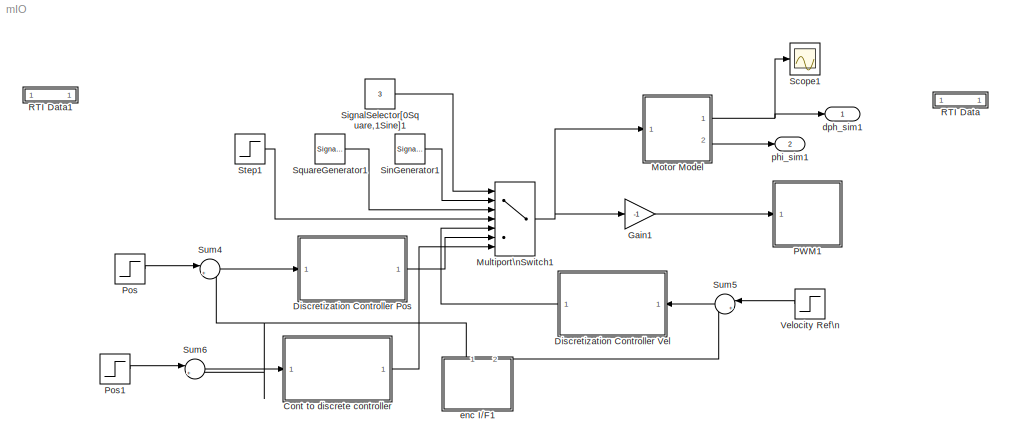
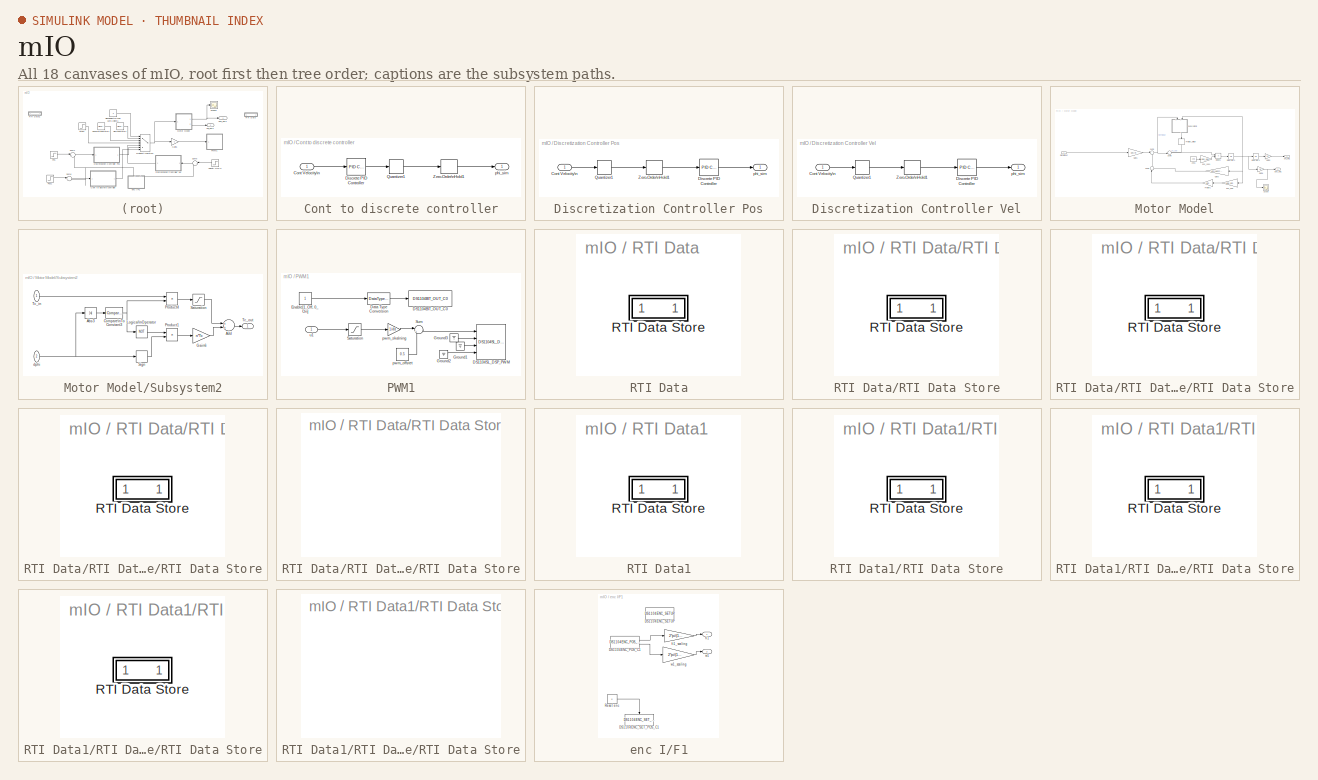
[diagram: thumbnail index - all 18 canvases of the model, root first then tree order]
MODEL mIO
KIND model
CONFIG InitFcn = param
CONFIG PostLoadFcn = , if any(exist('dsrtsu_mdlpostloadfcn', 'file') == [2, 3, 6]), try dsrtsu_mdlpostloadfcn('Execute', bdroot); catch fprintf('Error in PostLoadFcn (dsrtsu_mdlpostloadfcn) for model \"%s\":\\n %s\\n', bdroot, lasterr); end, end, \n
BLOCK [SubSystem] Cont to discrete controller
  Ports = [1, 1]
  RequestExecContextInheritance = off
  SID = 363
  Variant = off
BLOCK [Inport] Cont to discrete controller/Cont Velocity\n
  IconDisplay = Port number
  SID = 364
BLOCK [Reference] Cont to discrete controller/Discrete PID Controller  REF=simulink/Continuous/PID Controller
  AntiWindupMode = none
  Controller = PID
  ControllerParametersSource = internal
  D = D_cont
  DGainOutDataTypeStr = Inherit: Inherit via internal rule
  DOutDataTypeStr = Inherit: Inherit via internal rule
  DOutMax = []
  DOutMin = []
  DParamDataTypeStr = Inherit: Inherit via internal rule
  DParamMax = []
  DParamMin = []
  DProdOutDataTypeStr = Inherit: Inherit via internal rule
  DifferentiatorICPrevScaledInput = 0
  DifferentiatorOutDataTypeStr = Inherit: Inherit via internal rule
  DifferentiatorOutMax = []
  DifferentiatorOutMin = []
  ExternalReset = none
  FilterContinuousStateAttributes = ''
  FilterMethod = Forward Euler
  FilterOutDataTypeStr = Inherit: Inherit via internal rule
  FilterOutMax = []
  FilterOutMin = []
  FilterRTWStateStorageClass = Auto
  FilterStateMustResolveToSignalObject = off
  Form = Parallel
  I = I_cont
  IGainOutDataTypeStr = Inherit: Inherit via internal rule
  IOutDataTypeStr = Inherit: Inherit via internal rule
  IOutMax = []
  IOutMin = []
  IParamDataTypeStr = Inherit: Inherit via internal rule
  IParamMax = []
  IParamMin = []
  IProdOutDataTypeStr = Inherit: Inherit via internal rule
  IgnoreLimit = off
  InitialConditionForFilter = 0
  InitialConditionForIntegrator = 0
  InitialConditionSource = internal
  IntegratorContinuousStateAttributes = ''
  IntegratorMethod = Forward Euler
  IntegratorOutDataTypeStr = Inherit: Inherit via internal rule
  IntegratorOutMax = []
  IntegratorOutMin = []
  IntegratorRTWStateStorageClass = Auto
  IntegratorStateMustResolveToSignalObject = off
  Kb = 1
  KbOutDataTypeStr = Inherit: Inherit via internal rule
  KbOutMax = []
  KbOutMin = []
  KbParamDataTypeStr = Inherit: Inherit via internal rule
  KbParamMax = []
  KbParamMin = []
  Kt = 1
  KtOutDataTypeStr = Inherit: Inherit via internal rule
  KtOutMax = []
  KtOutMin = []
  KtParamDataTypeStr = Inherit: Inherit via internal rule
  KtParamMax = []
  KtParamMin = []
  LimitOutput = off
  LinearizeAsGain = off
  LockScale = off
  LowerSaturationLimit = -inf
  N = N_cont
  NGainOutDataTypeStr = Inherit: Inherit via internal rule
  NOutDataTypeStr = Inherit: Inherit via internal rule
  NOutMax = []
  NOutMin = []
  NParamDataTypeStr = Inherit: Inherit via internal rule
  NParamMax = []
  NParamMin = []
  NProdOutDataTypeStr = Inherit: Inherit via internal rule
  P = P_cont
  PGainOutDataTypeStr = Inherit: Inherit via internal rule
  POutDataTypeStr = Inherit: Inherit via internal rule
  POutMax = []
  POutMin = []
  PParamDataTypeStr = Inherit: Inherit via internal rule
  PParamMax = []
  PParamMin = []
  PProdOutDataTypeStr = Inherit: Inherit via internal rule
  Ports = [1, 1]
  RndMeth = Floor
  SID = 365
  SampleTime = -1
  SaturateOnIntegerOverflow = off
  SaturationOutDataTypeStr = Inherit: Same as input
  SaturationOutMax = []
  SaturationOutMin = []
  SourceBlock = simulink/Continuous/PID Controller
  SourceType = PID 1dof
  SumAccumDataTypeStr = Inherit: Inherit via internal rule
  SumDAccumDataTypeStr = Inherit: Inherit via internal rule
  SumDOutDataTypeStr = Inherit: Inherit via internal rule
  SumDOutMax = []
  SumDOutMin = []
  SumI1AccumDataTypeStr = Inherit: Inherit via internal rule
  SumI1OutDataTypeStr = Inherit: Inherit via internal rule
  SumI1OutMax = []
  SumI1OutMin = []
  SumI2AccumDataTypeStr = Inherit: Inherit via internal rule
  SumI2OutDataTypeStr = Inherit: Inherit via internal rule
  SumI2OutMax = []
  SumI2OutMin = []
  SumI3AccumDataTypeStr = Inherit: Inherit via internal rule
  SumI3OutDataTypeStr = Inherit: Inherit via internal rule
  SumI3OutMax = []
  SumI3OutMin = []
  SumOutDataTypeStr = Inherit: Inherit via internal rule
  SumOutMax = []
  SumOutMin = []
  TimeDomain = Continuous-time
  TrackingMode = off
  UpperSaturationLimit = inf
  UseFilter = on
  ZeroCross = on
BLOCK [Quantizer] Cont to discrete controller/Quantizer1
  LinearizeAsGain = off
  QuantizationInterval = Pulses
  SID = 366
  SampleTime = Ts
BLOCK [ZeroOrderHold] Cont to discrete controller/Zero-Order\nHold1
  SID = 367
  SampleTime = Ts
BLOCK [Outport] Cont to discrete controller/phi_sim
  IconDisplay = Port number
  SID = 368
BLOCK [SubSystem] Discretization Controller Pos
  Ports = [1, 1]
  RequestExecContextInheritance = off
  SID = 369
  Variant = off
BLOCK [Inport] Discretization Controller Pos/Cont Velocity\n
  IconDisplay = Port number
  SID = 370
BLOCK [Reference] Discretization Controller Pos/Discrete PID Controller  REF=simulink/Continuous/PID Controller
  AntiWindupMode = none
  Controller = PID
  ControllerParametersSource = internal
  D = Dz_Pos
  DGainOutDataTypeStr = Inherit: Inherit via internal rule
  DOutDataTypeStr = Inherit: Inherit via internal rule
  DOutMax = []
  DOutMin = []
  DParamDataTypeStr = Inherit: Inherit via internal rule
  DParamMax = []
  DParamMin = []
  DProdOutDataTypeStr = Inherit: Inherit via internal rule
  DifferentiatorICPrevScaledInput = 0
  DifferentiatorOutDataTypeStr = Inherit: Inherit via internal rule
  DifferentiatorOutMax = []
  DifferentiatorOutMin = []
  ExternalReset = none
  FilterContinuousStateAttributes = ''
  FilterMethod = Forward Euler
  FilterOutDataTypeStr = Inherit: Inherit via internal rule
  FilterOutMax = []
  FilterOutMin = []
  FilterRTWStateStorageClass = Auto
  FilterStateMustResolveToSignalObject = off
  Form = Parallel
  I = Iz_Pos
  IGainOutDataTypeStr = Inherit: Inherit via internal rule
  IOutDataTypeStr = Inherit: Inherit via internal rule
  IOutMax = []
  IOutMin = []
  IParamDataTypeStr = Inherit: Inherit via internal rule
  IParamMax = []
  IParamMin = []
  IProdOutDataTypeStr = Inherit: Inherit via internal rule
  IgnoreLimit = off
  InitialConditionForFilter = 0
  InitialConditionForIntegrator = 0
  InitialConditionSource = internal
  IntegratorContinuousStateAttributes = ''
  IntegratorMethod = Forward Euler
  IntegratorOutDataTypeStr = Inherit: Inherit via internal rule
  IntegratorOutMax = []
  IntegratorOutMin = []
  IntegratorRTWStateStorageClass = Auto
  IntegratorStateMustResolveToSignalObject = off
  Kb = 1
  KbOutDataTypeStr = Inherit: Inherit via internal rule
  KbOutMax = []
  KbOutMin = []
  KbParamDataTypeStr = Inherit: Inherit via internal rule
  KbParamMax = []
  KbParamMin = []
  Kt = 1
  KtOutDataTypeStr = Inherit: Inherit via internal rule
  KtOutMax = []
  KtOutMin = []
  KtParamDataTypeStr = Inherit: Inherit via internal rule
  KtParamMax = []
  KtParamMin = []
  LimitOutput = off
  LinearizeAsGain = off
  LockScale = off
  LowerSaturationLimit = -inf
  N = Nz_Pos
  NGainOutDataTypeStr = Inherit: Inherit via internal rule
  NOutDataTypeStr = Inherit: Inherit via internal rule
  NOutMax = []
  NOutMin = []
  NParamDataTypeStr = Inherit: Inherit via internal rule
  NParamMax = []
  NParamMin = []
  NProdOutDataTypeStr = Inherit: Inherit via internal rule
  P = Pz_pos
  PGainOutDataTypeStr = Inherit: Inherit via internal rule
  POutDataTypeStr = Inherit: Inherit via internal rule
  POutMax = []
  POutMin = []
  PParamDataTypeStr = Inherit: Inherit via internal rule
  PParamMax = []
  PParamMin = []
  PProdOutDataTypeStr = Inherit: Inherit via internal rule
  Ports = [1, 1]
  RndMeth = Floor
  SID = 371
  SampleTime = 1
  SaturateOnIntegerOverflow = off
  SaturationOutDataTypeStr = Inherit: Same as input
  SaturationOutMax = []
  SaturationOutMin = []
  SourceBlock = simulink/Continuous/PID Controller
  SourceType = PID 1dof
  SumAccumDataTypeStr = Inherit: Inherit via internal rule
  SumDAccumDataTypeStr = Inherit: Inherit via internal rule
  SumDOutDataTypeStr = Inherit: Inherit via internal rule
  SumDOutMax = []
  SumDOutMin = []
  SumI1AccumDataTypeStr = Inherit: Inherit via internal rule
  SumI1OutDataTypeStr = Inherit: Inherit via internal rule
  SumI1OutMax = []
  SumI1OutMin = []
  SumI2AccumDataTypeStr = Inherit: Inherit via internal rule
  SumI2OutDataTypeStr = Inherit: Inherit via internal rule
  SumI2OutMax = []
  SumI2OutMin = []
  SumI3AccumDataTypeStr = Inherit: Inherit via internal rule
  SumI3OutDataTypeStr = Inherit: Inherit via internal rule
  SumI3OutMax = []
  SumI3OutMin = []
  SumOutDataTypeStr = Inherit: Inherit via internal rule
  SumOutMax = []
  SumOutMin = []
  TimeDomain = Discrete-time
  TrackingMode = off
  UpperSaturationLimit = inf
  UseFilter = on
  ZeroCross = on
BLOCK [Quantizer] Discretization Controller Pos/Quantizer1
  LinearizeAsGain = off
  QuantizationInterval = Pulses
  SID = 372
  SampleTime = Ts
BLOCK [ZeroOrderHold] Discretization Controller Pos/Zero-Order\nHold1
  SID = 373
  SampleTime = Ts
BLOCK [Outport] Discretization Controller Pos/phi_sim
  IconDisplay = Port number
  SID = 374
BLOCK [SubSystem] Discretization Controller Vel
  Ports = [1, 1]
  RequestExecContextInheritance = off
  SID = 375
  Variant = off
BLOCK [Inport] Discretization Controller Vel/Cont Velocity\n
  IconDisplay = Port number
  SID = 376
BLOCK [Reference] Discretization Controller Vel/Discrete PID Controller  REF=simulink/Continuous/PID Controller
  AntiWindupMode = none
  Controller = PID
  ControllerParametersSource = internal
  D = Dz_Vel
  DGainOutDataTypeStr = Inherit: Inherit via internal rule
  DOutDataTypeStr = Inherit: Inherit via internal rule
  DOutMax = []
  DOutMin = []
  DParamDataTypeStr = Inherit: Inherit via internal rule
  DParamMax = []
  DParamMin = []
  DProdOutDataTypeStr = Inherit: Inherit via internal rule
  DifferentiatorICPrevScaledInput = 0
  DifferentiatorOutDataTypeStr = Inherit: Inherit via internal rule
  DifferentiatorOutMax = []
  DifferentiatorOutMin = []
  ExternalReset = none
  FilterContinuousStateAttributes = ''
  FilterMethod = Forward Euler
  FilterOutDataTypeStr = Inherit: Inherit via internal rule
  FilterOutMax = []
  FilterOutMin = []
  FilterRTWStateStorageClass = Auto
  FilterStateMustResolveToSignalObject = off
  Form = Parallel
  I = Iz_Vel
  IGainOutDataTypeStr = Inherit: Inherit via internal rule
  IOutDataTypeStr = Inherit: Inherit via internal rule
  IOutMax = []
  IOutMin = []
  IParamDataTypeStr = Inherit: Inherit via internal rule
  IParamMax = []
  IParamMin = []
  IProdOutDataTypeStr = Inherit: Inherit via internal rule
  IgnoreLimit = off
  InitialConditionForFilter = 0
  InitialConditionForIntegrator = 0
  InitialConditionSource = internal
  IntegratorContinuousStateAttributes = ''
  IntegratorMethod = Forward Euler
  IntegratorOutDataTypeStr = Inherit: Inherit via internal rule
  IntegratorOutMax = []
  IntegratorOutMin = []
  IntegratorRTWStateStorageClass = Auto
  IntegratorStateMustResolveToSignalObject = off
  Kb = 1
  KbOutDataTypeStr = Inherit: Inherit via internal rule
  KbOutMax = []
  KbOutMin = []
  KbParamDataTypeStr = Inherit: Inherit via internal rule
  KbParamMax = []
  KbParamMin = []
  Kt = 1
  KtOutDataTypeStr = Inherit: Inherit via internal rule
  KtOutMax = []
  KtOutMin = []
  KtParamDataTypeStr = Inherit: Inherit via internal rule
  KtParamMax = []
  KtParamMin = []
  LimitOutput = off
  LinearizeAsGain = off
  LockScale = off
  LowerSaturationLimit = -inf
  N = Nz_Vel
  NGainOutDataTypeStr = Inherit: Inherit via internal rule
  NOutDataTypeStr = Inherit: Inherit via internal rule
  NOutMax = []
  NOutMin = []
  NParamDataTypeStr = Inherit: Inherit via internal rule
  NParamMax = []
  NParamMin = []
  NProdOutDataTypeStr = Inherit: Inherit via internal rule
  P = Pz_Vel
  PGainOutDataTypeStr = Inherit: Inherit via internal rule
  POutDataTypeStr = Inherit: Inherit via internal rule
  POutMax = []
  POutMin = []
  PParamDataTypeStr = Inherit: Inherit via internal rule
  PParamMax = []
  PParamMin = []
  PProdOutDataTypeStr = Inherit: Inherit via internal rule
  Ports = [1, 1]
  RndMeth = Floor
  SID = 377
  SampleTime = 1
  SaturateOnIntegerOverflow = off
  SaturationOutDataTypeStr = Inherit: Same as input
  SaturationOutMax = []
  SaturationOutMin = []
  SourceBlock = simulink/Continuous/PID Controller
  SourceType = PID 1dof
  SumAccumDataTypeStr = Inherit: Inherit via internal rule
  SumDAccumDataTypeStr = Inherit: Inherit via internal rule
  SumDOutDataTypeStr = Inherit: Inherit via internal rule
  SumDOutMax = []
  SumDOutMin = []
  SumI1AccumDataTypeStr = Inherit: Inherit via internal rule
  SumI1OutDataTypeStr = Inherit: Inherit via internal rule
  SumI1OutMax = []
  SumI1OutMin = []
  SumI2AccumDataTypeStr = Inherit: Inherit via internal rule
  SumI2OutDataTypeStr = Inherit: Inherit via internal rule
  SumI2OutMax = []
  SumI2OutMin = []
  SumI3AccumDataTypeStr = Inherit: Inherit via internal rule
  SumI3OutDataTypeStr = Inherit: Inherit via internal rule
  SumI3OutMax = []
  SumI3OutMin = []
  SumOutDataTypeStr = Inherit: Inherit via internal rule
  SumOutMax = []
  SumOutMin = []
  TimeDomain = Discrete-time
  TrackingMode = off
  UpperSaturationLimit = inf
  UseFilter = on
  ZeroCross = on
BLOCK [Quantizer] Discretization Controller Vel/Quantizer1
  LinearizeAsGain = off
  QuantizationInterval = Pulses
  SID = 378
  SampleTime = Ts
BLOCK [ZeroOrderHold] Discretization Controller Vel/Zero-Order\nHold1
  SID = 379
  SampleTime = Ts
BLOCK [Outport] Discretization Controller Vel/phi_sim
  IconDisplay = Port number
  SID = 380
BLOCK [Gain] Gain1
  Gain = -1
  OutDataTypeStr = Inherit: Inherit via internal rule
  ParamDataTypeStr = Inherit: Inherit via internal rule
  SID = 381
  SaturateOnIntegerOverflow = off
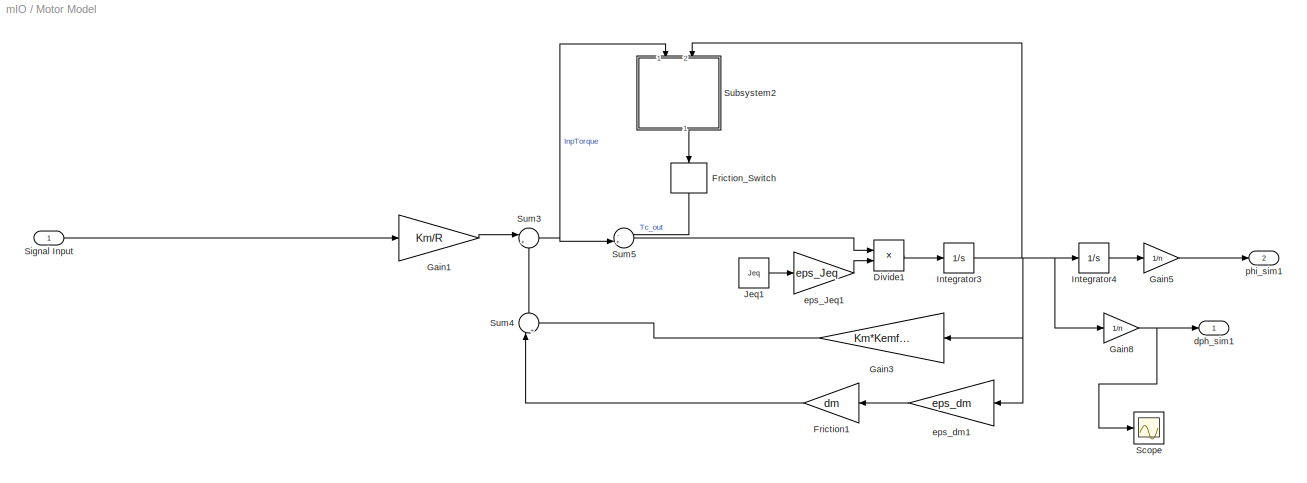
BLOCK [SubSystem] Motor Model
  Ports = [1, 2]
  RequestExecContextInheritance = off
  SID = 382
  Variant = off
BLOCK [Product] Motor Model/Divide1
  InputSameDT = off
  Inputs = */
  OutDataTypeStr = Inherit: Inherit via internal rule
  Ports = [2, 1]
  RndMeth = Floor
  SID = 220
  SaturateOnIntegerOverflow = off
BLOCK [Gain] Motor Model/Friction1
  Gain = dm
  OutDataTypeStr = Inherit: Inherit via internal rule
  ParamDataTypeStr = Inherit: Inherit via internal rule
  SID = 216
  SaturateOnIntegerOverflow = off
BLOCK [ManualSwitch] Motor Model/Friction_Switch
  SID = 262
BLOCK [Gain] Motor Model/Gain1
  Gain = Km/R
  OutDataTypeStr = Inherit: Inherit via internal rule
  ParamDataTypeStr = Inherit: Inherit via internal rule
  SID = 215
  SaturateOnIntegerOverflow = off
BLOCK [Gain] Motor Model/Gain3
  Gain = Km*Kemf/(R)
  OutDataTypeStr = Inherit: Inherit via internal rule
  ParamDataTypeStr = Inherit: Inherit via internal rule
  SID = 172
  SaturateOnIntegerOverflow = off
BLOCK [Gain] Motor Model/Gain5
  Gain = 1/n
  OutDataTypeStr = Inherit: Inherit via internal rule
  ParamDataTypeStr = Inherit: Inherit via internal rule
  SID = 173
  SaturateOnIntegerOverflow = off
BLOCK [Gain] Motor Model/Gain8
  Gain = 1/n
  OutDataTypeStr = Inherit: Inherit via internal rule
  ParamDataTypeStr = Inherit: Inherit via internal rule
  SID = 174
  SaturateOnIntegerOverflow = off
BLOCK [Integrator] Motor Model/Integrator3
  Ports = [1, 1]
  SID = 175
BLOCK [Integrator] Motor Model/Integrator4
  Ports = [1, 1]
  SID = 176
BLOCK [Constant] Motor Model/Jeq1
  SID = 221
  Value = Jeq
BLOCK [Scope] Motor Model/Scope
  NumInputPorts = 1
  Ports = [1]
  SID = 223
  ScopeSpecificationString = C++SS(StrPVP('Location','[-310, 190, 1610, 1181]'),StrPVP('Open','off'),MxPVP('AxesTitles',24,'struct(''axes1'',''%<SignalLabel>'')'),MxPVP('ScopeGraphics',28,'struct(''FigureColor'',''[0.5 0.5 0.5]'',''AxesColor'',''[0 0 0]'',''AxesTickColor'',''[1 1 1]'',''LineColors'',''[1 1 0;1 0 1;0 1 1;1 0 0;0 1 0;0 0 1]'',''LineStyles'',''-|-|-|-|-|-'',''LineWidths'',''[0.5 0.5 0.5 0.5 0.5 0.5]'',''MarkerSt...<+253ch>
BLOCK [Inport] Motor Model/Signal Input
  IconDisplay = Port number
  SID = 383
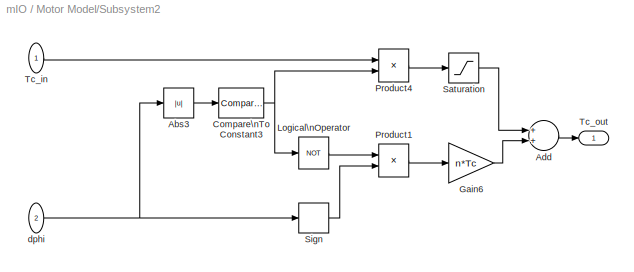
BLOCK [SubSystem] Motor Model/Subsystem2
  Ports = [2, 1]
  RequestExecContextInheritance = off
  SID = 264
  Variant = off
BLOCK [Abs] Motor Model/Subsystem2/Abs3
  SID = 267
  SaturateOnIntegerOverflow = off
BLOCK [Sum] Motor Model/Subsystem2/Add
  InputSameDT = off
  OutDataTypeStr = Inherit: Inherit via internal rule
  Ports = [2, 1]
  SID = 268
  SaturateOnIntegerOverflow = off
BLOCK [Reference] Motor Model/Subsystem2/Compare\nTo Constant3  REF=simulink/Logic and Bit\nOperations/Compare\nTo Constant
  OutDataTypeStr = boolean
  Ports = [1, 1]
  SID = 269
  SourceBlock = simulink/Logic and Bit\nOperations/Compare\nTo Constant
  SourceType = Compare To Constant
  ZeroCross = on
  const = dv
  relop = <=
BLOCK [Gain] Motor Model/Subsystem2/Gain6
  Gain = n*Tc
  OutDataTypeStr = Inherit: Inherit via internal rule
  ParamDataTypeStr = Inherit: Inherit via internal rule
  SID = 270
  SaturateOnIntegerOverflow = off
BLOCK [Logic] Motor Model/Subsystem2/Logical\nOperator
  AllPortsSameDT = off
  Operator = NOT
  OutDataTypeStr = boolean
  Ports = [1, 1]
  SID = 271
BLOCK [Product] Motor Model/Subsystem2/Product1
  InputSameDT = off
  OutDataTypeStr = Inherit: Inherit via internal rule
  Ports = [2, 1]
  RndMeth = Floor
  SID = 272
  SaturateOnIntegerOverflow = off
BLOCK [Product] Motor Model/Subsystem2/Product4
  InputSameDT = off
  OutDataTypeStr = Inherit: Inherit via internal rule
  Ports = [2, 1]
  RndMeth = Floor
  SID = 273
  SaturateOnIntegerOverflow = off
BLOCK [Saturate] Motor Model/Subsystem2/Saturation
  InputPortMap = u0
  LowerLimit = -n*Tc
  Ports = [1, 1]
  SID = 274
  UpperLimit = n*Tc
BLOCK [Signum] Motor Model/Subsystem2/Sign
  SID = 275
BLOCK [Inport] Motor Model/Subsystem2/Tc_in
  IconDisplay = Port number
  SID = 265
BLOCK [Outport] Motor Model/Subsystem2/Tc_out
  IconDisplay = Port number
  SID = 276
BLOCK [Inport] Motor Model/Subsystem2/dphi
  IconDisplay = Port number
  Port = 2
  SID = 266
BLOCK [Sum] Motor Model/Sum3
  IconShape = round
  InputSameDT = off
  Inputs = |+-
  OutDataTypeStr = Inherit: Inherit via internal rule
  Ports = [2, 1]
  SID = 180
  SaturateOnIntegerOverflow = off
BLOCK [Sum] Motor Model/Sum4
  IconShape = round
  InputSameDT = off
  Inputs = |++
  OutDataTypeStr = Inherit: Inherit via internal rule
  Ports = [2, 1]
  SID = 217
  SaturateOnIntegerOverflow = off
BLOCK [Sum] Motor Model/Sum5
  IconShape = round
  InputSameDT = off
  Inputs = -+|
  OutDataTypeStr = Inherit: Inherit via internal rule
  Ports = [2, 1]
  SID = 249
  SaturateOnIntegerOverflow = off
BLOCK [Outport] Motor Model/dph_sim1
  IconDisplay = Port number
  SID = 158
BLOCK [Gain] Motor Model/eps_Jeq1
  Gain = eps_Jeq
  OutDataTypeStr = Inherit: Inherit via internal rule
  ParamDataTypeStr = Inherit: Inherit via internal rule
  SID = 171
  SaturateOnIntegerOverflow = off
BLOCK [Gain] Motor Model/eps_dm1
  Gain = eps_dm
  OutDataTypeStr = Inherit: Inherit via internal rule
  ParamDataTypeStr = Inherit: Inherit via internal rule
  SID = 222
  SaturateOnIntegerOverflow = off
BLOCK [Outport] Motor Model/phi_sim1
  IconDisplay = Port number
  Port = 2
  SID = 159
BLOCK [MultiPortSwitch] Multiport\nSwitch1
  InputSameDT = off
  Inputs = 6
  Ports = [7, 1]
  SID = 399
  SaturateOnIntegerOverflow = off
BLOCK [SubSystem] PWM1
  Ports = [1]
  RequestExecContextInheritance = off
  SID = 400
  Variant = off
BLOCK [Reference] PWM1/DS1104BIT_OUT_C0  REF=rtilib1104/DS1104 MASTER PPC/DS1104BIT_OUT_C0
  ChannelNo = 0
  DSProperties = struct('RTI',struct('Version',uint32(1),'BlockType',struct('isSLSource',uint8(0),'isSLSink',uint8(1),'isHWSource',uint8(0),'isHWSink',uint8(1),'isSetup',uint8(0),'isInline',uint8(1),'isNonInline',uint8(0),'isInterrupt',uint8(0),'isChannelwise',uint8(1)),'IOBoardType','DS1104MASTER','UnitType','BIT','Identifier','BITOUTCH','DialogType','ML','BlockSet','NONE','SlaveProcessor','NONE'))
  DialogFcn = gui1104bit_out
  InitValue = 1
  Ports = [1]
  Reserved = []
  Reserved1 = []
  Reserved2 = []
  Reserved3 = []
  SID = 402
  SourceBlock = rtilib1104/DS1104 MASTER PPC/DS1104BIT_OUT_C0
  SourceType = RTI
  TermMode = 0
  TermValue = 0
  UnitName = {'DS1104BIT_OUT_C'}
  UnitValues = { 0 }
BLOCK [Reference] PWM1/DS1104SL_DSP_PWM  REF=rtilib1104/DS1104 SLAVE DSP/DS1104SL_DSP_PWM
  BoardType = []
  DSProperties = struct('RTI',struct('Version',uint32(2),'BlockType',struct('isSLSource',uint8(0),'isSLSink',uint8(1),'isHWSource',uint8(0),'isHWSink',uint8(1),'isSetup',uint8(0),'isInline',uint8(1),'isNonInline',uint8(0),'isInterrupt',uint8(0),'isChannelwise',uint8(0)),'IOBoardType','DS1104SLAVE','UnitType','PWM','Identifier','PWM','DialogType','ML','BlockSet','NONE','SlaveProcessor','F240'))
  DialogFcn = gui1104sl_dsp_pwm
  Frequency = 20000
  InitValue = [0.5 0.5 0.5 0.5]
  Parameters = []
  Polarity = [1 1 1 1]
  Ports = [4]
  PwmMode = 1
  RTIBlockInterface = struct('InputPortsActive',[1 1 1 1],'InputPortsWidth',int32([1 1 1 1]),'InputPortsName',{{['PWM Channel 1'],['PWM Channel 2'],['PWM Channel 3'],['PWM Channel 4']}},'IWork',{{{'',uint32(4)}}},'DialogFcn','rti1104slavepwmgui','InitLevel',1,'BlockDisplay',{{'','auto'}},'IconTransparency','on','MultiSFcn',4,'BlockName',struct('Token',{{'DS1104SL_DSP_PWM'}}))
  RTIBlockParaDefault = struct('PWMSymmetryMode',1,'PWMFrequency',100,'PWMPolarityMode',[1 1 1 1 1],'ChannelNo',[1 2 3 4],'SuspendModeInit',[1 1 1 1 1],'TTLModeInit',[2 2 2 2 2],'DutyCycleInitValueCh1',0.5,'DutyCycleInitValueCh2',0.5,'DutyCycleInitValueCh3',0.5,'DutyCycleInitValueCh4',0.5,'DutyCycleInitValueCh5',0.5,'EnablePWMStop',[1 1 1 1 0],'SuspendModeTerm',[1 1 1 1 1],'TTLModeTerm',[2 2 2 2 2],'DutyCycleTermValueCh1...<+145ch>
  RTIBlockParameters = struct('PWMSymmetryMode',{{1,'OFF',[]}},'PWMFrequency',{{'50000','OFF',[]}},'PWMPolarityMode',{{[1 1 1 1 1],'OFF',[]}},'ChannelNo',{{[1 2 3 4],'OFF',[]}},'SuspendModeInit',{{[0 0 0 0 1],'OFF',[]}},'TTLModeInit',{{[2 2 2 2 2],'OFF',[]}},'DutyCycleInitValueCh1',{{'0.5','OFF',[]}},'DutyCycleInitValueCh2',{{'0.5','OFF',[]}},'DutyCycleInitValueCh3',{{'0.5','OFF',[]}},'DutyCycleInitValueCh4',{{'0.5','OF...<+429ch>
  RTISFcnParameters = struct('PWMSymmetryMode','double','PWMFrequency','double','PWMPolarityMode','double','ChannelNo','double','SuspendModeInit','double','TTLModeInit','double','DutyCycleInitValueCh1','double','DutyCycleInitValueCh2','double','DutyCycleInitValueCh3','double','DutyCycleInitValueCh4','double','EnablePWMStop','double','SuspendModeTerm','double','TTLModeTerm','double','DutyCycleTermValueCh1','double','Dut...<+116ch>
  Reserved1 = []
  Reserved2 = []
  Reserved3 = []
  Reserved4 = []
  Revision = []
  SID = 403
  SourceBlock = rtilib1104/DS1104 SLAVE DSP/DS1104SL_DSP_PWM
  SourceType = RTI
  TDef = []
  TermMode = [0 0 0 0]
  TermValue = [0.5 0.5 0.5 0.5]
  UnitName = {'DS1104SL_DSP_PWM'}
  UnitValues = {[]}
BLOCK [DataTypeConversion] PWM1/Data Type Conversion
  OutDataTypeStr = boolean
  SID = 404
BLOCK [Constant] PWM1/Enable[1_Off, 0_On]
  SID = 405
BLOCK [Ground] PWM1/Ground1
  SID = 406
BLOCK [Ground] PWM1/Ground2
  SID = 407
BLOCK [Ground] PWM1/Ground3
  SID = 408
BLOCK [Saturate] PWM1/Saturation
  InputPortMap = u0
  LowerLimit = -24
  Ports = [1, 1]
  SID = 409
  UpperLimit = 24
BLOCK [Sum] PWM1/Sum
  IconShape = round
  InputSameDT = off
  Inputs = |++
  OutDataTypeStr = Inherit: Inherit via internal rule
  Ports = [2, 1]
  SID = 410
BLOCK [Constant] PWM1/pwm_offstet
  SID = 411
  Value = 0.5
BLOCK [Gain] PWM1/pwm_skalning
  Gain = 1/48
  SID = 412
BLOCK [Inport] PWM1/u1
  IconDisplay = Port number
  SID = 401
BLOCK [Step] Pos
  SID = 413
  SampleTime = 0
  Time = 0
BLOCK [Step] Pos1
  SID = 414
  SampleTime = 0
  Time = 0
BLOCK [SubSystem] RTI Data
  CopyFcn = if exist('rtidc'), try,  rtidc('DataHostBlockClbCopy', gcbh); catch, disp(['Warning: ''CopyFcn'' for RTI Data block failed: ' lasterr]); end, end,
  DeleteFcn = if exist('rtidc'), try,  rtidc('DataHostBlockClbDelete', gcbh); catch, disp(['Warning: ''DeleteFcn'' for RTI Data block failed: ' lasterr]); end, end,
  LoadFcn = if exist('rtidc'), try,  rtidc('DataHostBlockClbLoad', gcbh); catch, disp(['Warning: ''LoadFcn'' for RTI Data block failed: ' lasterr]); end, end,
  ModelCloseFcn = if exist('rtidc'), try,  rtidc('DataHostBlockClbModelClose', gcbh); catch, disp(['Warning: ''ModelCloseFcn'' for RTI Data block failed: ' lasterr]); end, end,
  NameChangeFcn = if exist('rtidc'), try,  rtidc('DataHostBlockClbNameChange', gcbh); catch, disp(['Warning: ''NameChangeFcn'' for RTI Data block failed: ' lasterr]); end, end,
  Ports = []
  PostSaveFcn = if exist('rtidc'), try,  rtidc('DataHostBlockClbPostSave', gcbh); catch, disp(['Warning: ''PostSaveFcn'' for RTI Data block failed: ' lasterr]); end, end,
  PreSaveFcn = if exist('rtidc'), try,  rtidc('DataHostBlockClbPreSave', gcbh); catch, disp(['Warning: ''PreSaveFcn'' for RTI Data block failed: ' lasterr]); end, end,
  RequestExecContextInheritance = off
  SID = 40
  Tag = struct('RTIDataServer',struct('RTIDataServerVs','2','RTIModelDescription','struct(''main'',''mIO'',''sub'','''',''isMp'',0)'))
  Variant = off
BLOCK [SubSystem] RTI Data/RTI Data Store
  Ports = []
  RequestExecContextInheritance = off
  SID = 282
  Tag = struct('public',struct('sub',struct('name',{{'mIO'}},'data',{{struct('TH',struct('thTaskInfo',struct('taskType',{'TIMER','HWINT','TMRINT','SWINT','GLINT'},'tasksNumOf',{1,0,0,0,0},'srcIds',{{'TIMERA'},{},{},{},{}},'taskNames',{{['Timer Task 1']},{},{},{},{}})),'th_tc',struct('dataType','TASK','taskGroupId','','taskGroupList',{{}},'taskSchedulingPolicy','FCFS','taskType','TIMER','blkh',-1,'srcId','...<+733ch>
  Variant = off
BLOCK [SubSystem] RTI Data/RTI Data Store/RTI Data Store
  Ports = []
  RequestExecContextInheritance = off
  SID = 283
  Variant = off
BLOCK [SubSystem] RTI Data/RTI Data Store/RTI Data Store/RTI Data Store
  Ports = []
  RequestExecContextInheritance = off
  SID = 284
  Variant = off
BLOCK [SubSystem] RTI Data/RTI Data Store/RTI Data Store/RTI Data Store/RTI Data Store
  Ports = []
  RequestExecContextInheritance = off
  SID = 285
  Variant = off
BLOCK [SubSystem] RTI Data1
  CopyFcn = if exist('rtidc'), try,  rtidc('DataHostBlockClbCopy', gcbh); catch, disp(['Warning: ''CopyFcn'' for RTI Data block failed: ' lasterr]); end, end,
  DeleteFcn = if exist('rtidc'), try,  rtidc('DataHostBlockClbDelete', gcbh); catch, disp(['Warning: ''DeleteFcn'' for RTI Data block failed: ' lasterr]); end, end,
  LoadFcn = if exist('rtidc'), try,  rtidc('DataHostBlockClbLoad', gcbh); catch, disp(['Warning: ''LoadFcn'' for RTI Data block failed: ' lasterr]); end, end,
  ModelCloseFcn = if exist('rtidc'), try,  rtidc('DataHostBlockClbModelClose', gcbh); catch, disp(['Warning: ''ModelCloseFcn'' for RTI Data block failed: ' lasterr]); end, end,
  NameChangeFcn = if exist('rtidc'), try,  rtidc('DataHostBlockClbNameChange', gcbh); catch, disp(['Warning: ''NameChangeFcn'' for RTI Data block failed: ' lasterr]); end, end,
  Ports = []
  PostSaveFcn = if exist('rtidc'), try,  rtidc('DataHostBlockClbPostSave', gcbh); catch, disp(['Warning: ''PostSaveFcn'' for RTI Data block failed: ' lasterr]); end, end,
  PreSaveFcn = if exist('rtidc'), try,  rtidc('DataHostBlockClbPreSave', gcbh); catch, disp(['Warning: ''PreSaveFcn'' for RTI Data block failed: ' lasterr]); end, end,
  RequestExecContextInheritance = off
  SID = 415
  Tag = struct('RTIDataServer',struct('RTIDataServerVs','2','RTIModelDescription','struct(''main'',''mIO'',''sub'','''',''isMp'',0)'))
  Variant = off
BLOCK [SubSystem] RTI Data1/RTI Data Store
  Ports = []
  RequestExecContextInheritance = off
  SID = 416
  Tag = struct('public',struct('sub',struct('name',{{'mIO'}},'data',{{struct('TH',struct('thTaskInfo',struct('taskType',{'TIMER','HWINT','TMRINT','SWINT','GLINT'},'tasksNumOf',{1,0,0,0,0},'srcIds',{{'TIMERA'},{},{},{},{}},'taskNames',{{['Timer Task 1']},{},{},{},{}})),'th_tc',struct('dataType','TASK','taskGroupId','','taskGroupList',{{}},'taskSchedulingPolicy','FCFS','taskType','TIMER','blkh',-1,'srcId','...<+729ch>
  Variant = off
BLOCK [SubSystem] RTI Data1/RTI Data Store/RTI Data Store
  Ports = []
  RequestExecContextInheritance = off
  SID = 417
  Variant = off
BLOCK [SubSystem] RTI Data1/RTI Data Store/RTI Data Store/RTI Data Store
  Ports = []
  RequestExecContextInheritance = off
  SID = 418
  Variant = off
BLOCK [SubSystem] RTI Data1/RTI Data Store/RTI Data Store/RTI Data Store/RTI Data Store
  Ports = []
  RequestExecContextInheritance = off
  SID = 419
  Variant = off
BLOCK [Scope] Scope1
  NumInputPorts = 1
  Ports = [1]
  SID = 420
  ScopeSpecificationString = C++SS(StrPVP('Location','[1, 48, 1921, 1039]'),StrPVP('Open','off'),MxPVP('AxesTitles',24,'struct(''axes1'',''%<SignalLabel>'')'),MxPVP('ScopeGraphics',28,'struct(''FigureColor'',''[0.5 0.5 0.5]'',''AxesColor'',''[0 0 0]'',''AxesTickColor'',''[1 1 1]'',''LineColors'',''[1 1 0;1 0 1;0 1 1;1 0 0;0 1 0;0 0 1]'',''LineStyles'',''-|-|-|-|-|-'',''LineWidths'',''[0.5 0.5 0.5 0.5 0.5 0.5]'',''MarkerStyles...<+250ch>
BLOCK [Constant] SignalSelector[0Square,1Sine]1
  SID = 421
  Value = 3
BLOCK [SignalGenerator] SinGenerator1
  Amplitude = 0
  Ports = [0, 1]
  SID = 422
  Units = rad/sec
BLOCK [SignalGenerator] SquareGenerator1
  Amplitude = 6
  Frequency = 2*pi*1e-4
  Ports = [0, 1]
  SID = 423
  Units = rad/sec
  WaveForm = square
BLOCK [Step] Step1
  SID = 424
  SampleTime = 0
  Time = 0
BLOCK [Sum] Sum4
  IconShape = round
  InputSameDT = off
  Inputs = |+-
  OutDataTypeStr = Inherit: Inherit via internal rule
  Ports = [2, 1]
  SID = 425
  SaturateOnIntegerOverflow = off
BLOCK [Sum] Sum5
  IconShape = round
  InputSameDT = off
  Inputs = |+-
  OutDataTypeStr = Inherit: Inherit via internal rule
  Ports = [2, 1]
  SID = 426
  SaturateOnIntegerOverflow = off
BLOCK [Sum] Sum6
  IconShape = round
  InputSameDT = off
  Inputs = |+-
  OutDataTypeStr = Inherit: Inherit via internal rule
  Ports = [2, 1]
  SID = 427
  SaturateOnIntegerOverflow = off
BLOCK [Step] Velocity Ref\n
  SID = 428
  SampleTime = 0
  Time = 0
BLOCK [Outport] dph_sim1
  IconDisplay = Port number
  SID = 438
BLOCK [SubSystem] enc I//F1
  Ports = [0, 2]
  RequestExecContextInheritance = off
  SID = 429
  Variant = off
BLOCK [Reference] enc I//F1/DS1104ENC_POS_C1  REF=rtilib1104/DS1104 MASTER PPC/DS1104ENC_POS_C1
  ChannelNo = 1
  DSProperties = struct('RTI',struct('Version',uint32(1),'BlockType',struct('isSLSource',uint8(1),'isSLSink',uint8(0),'isHWSource',uint8(1),'isHWSink',uint8(0),'isSetup',uint8(0),'isInline',uint8(1),'isNonInline',uint8(0),'isInterrupt',uint8(0),'isChannelwise',uint8(1)),'IOBoardType','DS1104MASTER','UnitType','ENC','Identifier','ENCPOSCH','DialogType','ML','BlockSet','NONE','SlaveProcessor','NONE'))
  DialogFcn = gui1104enc_pos
  Ports = [0, 2]
  PosValue = 0
  Reserved1 = []
  Reserved2 = []
  Reserved3 = []
  Reserved4 = []
  SID = 430
  SourceBlock = rtilib1104/DS1104 MASTER PPC/DS1104ENC_POS_C1
  SourceType = RTI
  UnitName = {'DS1104ENC_POS_C'}
  UnitValues = { 1 }
BLOCK [Reference] enc I//F1/DS1104ENC_SETUP  REF=rtilib1104/DS1104 MASTER PPC/DS1104ENC_SETUP
  DSProperties = struct('RTI',struct('Version',uint32(1),'BlockType',struct('isSLSource',uint8(0),'isSLSink',uint8(0),'isHWSource',uint8(0),'isHWSink',uint8(0),'isSetup',uint8(0),'isInline',uint8(1),'isNonInline',uint8(0),'isInterrupt',uint8(0),'isChannelwise',uint8(0)),'IOBoardType','DS1104MASTER','UnitType','ENC','Identifier','ENCSETUP','DialogType','ML','BlockSet','NONE','SlaveProcessor','NONE'))
  DialogFcn = gui1104enc_setup
  Ports = []
  Reserved1 = []
  Reserved2 = []
  Reserved3 = []
  Reserved4 = []
  SID = 431
  SignalType = [1 0]
  SourceBlock = rtilib1104/DS1104 MASTER PPC/DS1104ENC_SETUP
  SourceType = RTI
  UnitName = {'DS1104ENC_SETUP'}
  UnitValues = { [] }
BLOCK [Reference] enc I//F1/DS1104ENC_SET_POS_C1  REF=rtilib1104/DS1104 MASTER PPC/DS1104ENC_SET_POS_C1
  ChannelNo = 1
  DSProperties = struct('RTI',struct('Version',uint32(1),'BlockType',struct('isSLSource',uint8(0),'isSLSink',uint8(1),'isHWSource',uint8(0),'isHWSink',uint8(1),'isSetup',uint8(0),'isInline',uint8(1),'isNonInline',uint8(0),'isInterrupt',uint8(0),'isChannelwise',uint8(1)),'IOBoardType','DS1104MASTER','UnitType','ENC','Identifier','ENCRESET','DialogType','ML','BlockSet','NONE','SlaveProcessor','NONE'))
  DialogFcn = gui1104enc_set_pos
  Ports = [0, 0, 0, 1]
  PosValue = 0
  Reserved1 = []
  Reserved2 = []
  Reserved3 = []
  Reserved4 = []
  SID = 432
  SourceBlock = rtilib1104/DS1104 MASTER PPC/DS1104ENC_SET_POS_C1
  SourceType = RTI
  UnitName = {'DS1104ENC_SET_POS_C'}
  UnitValues = { 1 }
BLOCK [Constant] enc I//F1/Reset enc
  SID = 433
  Value = 0
BLOCK [Outport] enc I//F1/fi1
  IconDisplay = Port number
  SID = 436
BLOCK [Gain] enc I//F1/fi1_scaling
  Gain = 2*pi/(1000)
  SID = 434
BLOCK [Outport] enc I//F1/w1
  IconDisplay = Port number
  Port = 2
  SID = 437
BLOCK [Gain] enc I//F1/w1_scaling
  Gain = 2*pi/(1000)/Ts
  SID = 435
BLOCK [Outport] phi_sim1
  IconDisplay = Port number
  Port = 2
  SID = 439
LINE Cont to discrete controller/Cont Velocity\n:1 -> Cont to discrete controller/Discrete PID Controller:1
LINE Cont to discrete controller/Discrete PID Controller:1 -> Cont to discrete controller/Quantizer1:1
LINE Cont to discrete controller/Quantizer1:1 -> Cont to discrete controller/Zero-Order\nHold1:1
LINE Cont to discrete controller/Zero-Order\nHold1:1 -> Cont to discrete controller/phi_sim:1
LINE Cont to discrete controller:1 -> Multiport\nSwitch1:7
LINE Discretization Controller Pos/Cont Velocity\n:1 -> Discretization Controller Pos/Quantizer1:1
LINE Discretization Controller Pos/Discrete PID Controller:1 -> Discretization Controller Pos/phi_sim:1
LINE Discretization Controller Pos/Quantizer1:1 -> Discretization Controller Pos/Zero-Order\nHold1:1
LINE Discretization Controller Pos/Zero-Order\nHold1:1 -> Discretization Controller Pos/Discrete PID Controller:1
LINE Discretization Controller Pos:1 -> Multiport\nSwitch1:6
LINE Discretization Controller Vel/Cont Velocity\n:1 -> Discretization Controller Vel/Quantizer1:1
LINE Discretization Controller Vel/Discrete PID Controller:1 -> Discretization Controller Vel/phi_sim:1
LINE Discretization Controller Vel/Quantizer1:1 -> Discretization Controller Vel/Zero-Order\nHold1:1
LINE Discretization Controller Vel/Zero-Order\nHold1:1 -> Discretization Controller Vel/Discrete PID Controller:1
LINE Discretization Controller Vel:1 -> Multiport\nSwitch1:5
LINE Gain1:1 -> PWM1:1
LINE Motor Model/Divide1:1 -> Motor Model/Integrator3:1
LINE Motor Model/Friction1:1 -> Motor Model/Sum4:1
LINE Motor Model/Friction_Switch:1 -> Motor Model/Sum5:1
LINE Motor Model/Gain1:1 -> Motor Model/Sum3:1
LINE Motor Model/Gain3:1 -> Motor Model/Sum4:2
LINE Motor Model/Gain5:1 -> Motor Model/phi_sim1:1
NET Motor Model/Gain8:1 -> Motor Model/Scope:1, Motor Model/dph_sim1:1
NET Motor Model/Integrator3:1 -> Motor Model/Gain3:1, Motor Model/Gain8:1, Motor Model/Integrator4:1, Motor Model/Subsystem2:2, Motor Model/eps_dm1:1
LINE Motor Model/Integrator4:1 -> Motor Model/Gain5:1
LINE Motor Model/Jeq1:1 -> Motor Model/eps_Jeq1:1
LINE Motor Model/Signal Input:1 -> Motor Model/Gain1:1
LINE Motor Model/Subsystem2/Abs3:1 -> Motor Model/Subsystem2/Compare\nTo Constant3:1
LINE Motor Model/Subsystem2/Add:1 -> Motor Model/Subsystem2/Tc_out:1
NET Motor Model/Subsystem2/Compare\nTo Constant3:1 -> Motor Model/Subsystem2/Logical\nOperator:1, Motor Model/Subsystem2/Product4:2
LINE Motor Model/Subsystem2/Gain6:1 -> Motor Model/Subsystem2/Add:2
LINE Motor Model/Subsystem2/Logical\nOperator:1 -> Motor Model/Subsystem2/Product1:1
LINE Motor Model/Subsystem2/Product1:1 -> Motor Model/Subsystem2/Gain6:1
LINE Motor Model/Subsystem2/Product4:1 -> Motor Model/Subsystem2/Saturation:1
LINE Motor Model/Subsystem2/Saturation:1 -> Motor Model/Subsystem2/Add:1
LINE Motor Model/Subsystem2/Sign:1 -> Motor Model/Subsystem2/Product1:2
LINE Motor Model/Subsystem2/Tc_in:1 -> Motor Model/Subsystem2/Product4:1
NET Motor Model/Subsystem2/dphi:1 -> Motor Model/Subsystem2/Abs3:1, Motor Model/Subsystem2/Sign:1
LINE Motor Model/Subsystem2:1 -> Motor Model/Friction_Switch:1
NET Motor Model/Sum3:1 -> Motor Model/Subsystem2:1, Motor Model/Sum5:2
LINE Motor Model/Sum4:1 -> Motor Model/Sum3:2
LINE Motor Model/Sum5:1 -> Motor Model/Divide1:1
LINE Motor Model/eps_Jeq1:1 -> Motor Model/Divide1:2
LINE Motor Model/eps_dm1:1 -> Motor Model/Friction1:1
NET Motor Model:1 -> Scope1:1, dph_sim1:1
LINE Motor Model:2 -> phi_sim1:1
NET Multiport\nSwitch1:1 -> Gain1:1, Motor Model:1
LINE PWM1/Data Type Conversion:1 -> PWM1/DS1104BIT_OUT_C0:1
LINE PWM1/Enable[1_Off, 0_On]:1 -> PWM1/Data Type Conversion:1
LINE PWM1/Ground1:1 -> PWM1/DS1104SL_DSP_PWM:3
LINE PWM1/Ground2:1 -> PWM1/DS1104SL_DSP_PWM:4
LINE PWM1/Ground3:1 -> PWM1/DS1104SL_DSP_PWM:2
LINE PWM1/Saturation:1 -> PWM1/pwm_skalning:1
LINE PWM1/Sum:1 -> PWM1/DS1104SL_DSP_PWM:1
LINE PWM1/pwm_offstet:1 -> PWM1/Sum:2
LINE PWM1/pwm_skalning:1 -> PWM1/Sum:1
LINE PWM1/u1:1 -> PWM1/Saturation:1
LINE Pos1:1 -> Sum6:1
LINE Pos:1 -> Sum4:1
LINE SignalSelector[0Square,1Sine]1:1 -> Multiport\nSwitch1:1
LINE SinGenerator1:1 -> Multiport\nSwitch1:2
LINE SquareGenerator1:1 -> Multiport\nSwitch1:3
LINE Step1:1 -> Multiport\nSwitch1:4
LINE Sum4:1 -> Discretization Controller Pos:1
LINE Sum5:1 -> Discretization Controller Vel:1
LINE Sum6:1 -> Cont to discrete controller:1
LINE Velocity Ref\n:1 -> Sum5:1
LINE enc I//F1/DS1104ENC_POS_C1:1 -> enc I//F1/fi1_scaling:1
LINE enc I//F1/DS1104ENC_POS_C1:2 -> enc I//F1/w1_scaling:1
LINE enc I//F1/Reset enc:1 -> enc I//F1/DS1104ENC_SET_POS_C1:trigger
LINE enc I//F1/fi1_scaling:1 -> enc I//F1/fi1:1
LINE enc I//F1/w1_scaling:1 -> enc I//F1/w1:1
NET enc I//F1:1 -> Sum4:2, Sum6:2
LINE enc I//F1:2 -> Sum5:2
note: NET lines group one-source signal fan-out (src -> all destinations, sorted); 1:1 wires keep LINE
